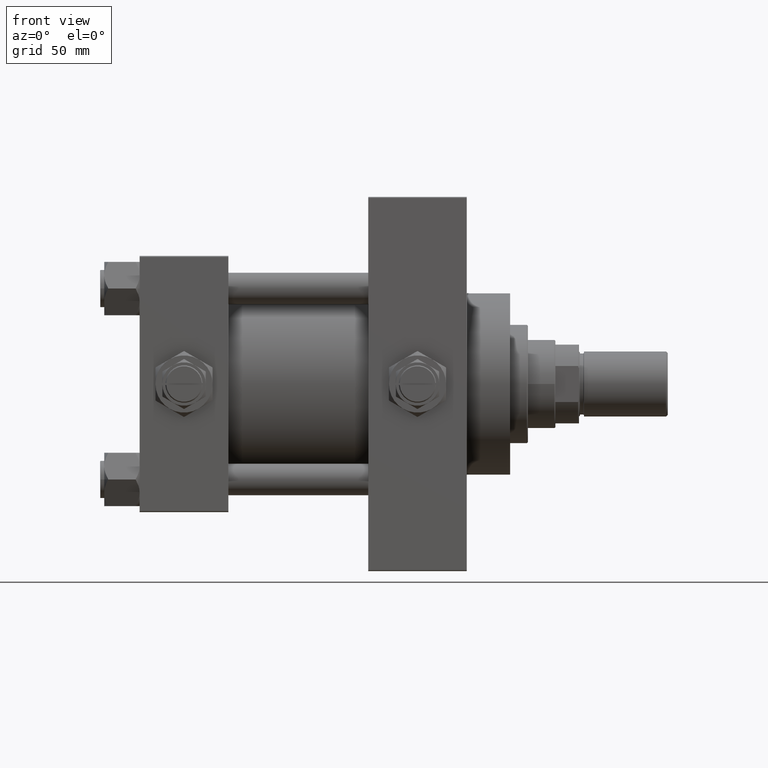
[diagram: clean part render]
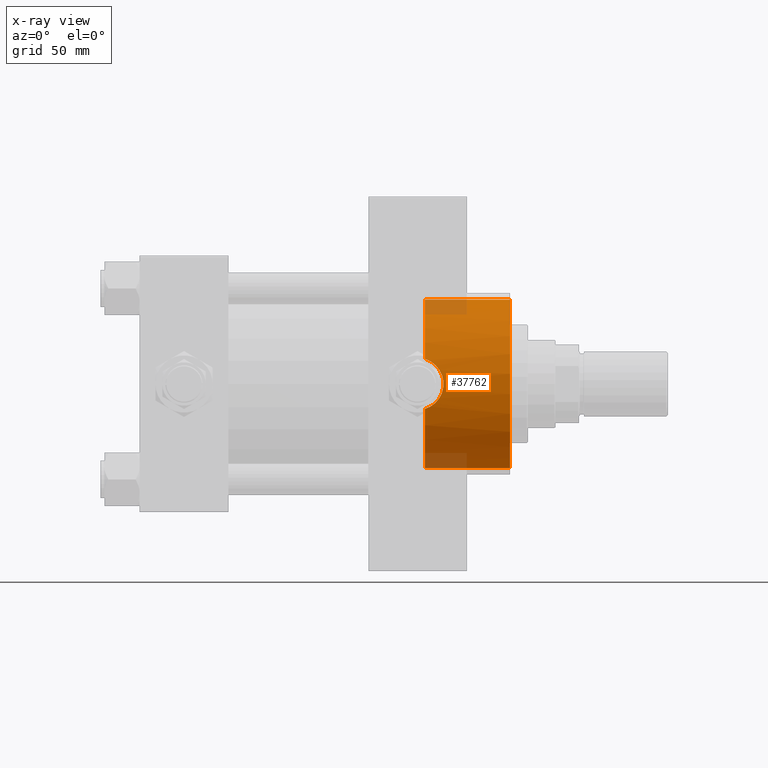
[diagram: x-ray — body ghosted, one internal face saturated and labeled with its STEP entity id]
A machine part, front view, then the same camera in x-ray: the body is ghosted and one INTERNAL B-rep face — a face not visible from any outside direction — is saturated and labeled: STEP entity #37762.
In plain terms, the highlighted cylindrical surface (partial cylindrical patch) has radius 42.75 mm, axis along (1, 0, 0).
Its self-contained STEP definition (entity closure, byte-faithful):
#130 = CARTESIAN_POINT ( 'NONE',  ( 187.9999999999999716, 5.235365066354935472E-15, 42.75000000000000000 ) ) ;
#1905 = CARTESIAN_POINT ( 'NONE',  ( 148.8355753955777629, -41.40179266465073482, -10.65353493722052391 ) ) ;
#2017 = AXIS2_PLACEMENT_3D ( 'NONE', #6197, #36952, #5680 ) ;
#2167 = CARTESIAN_POINT ( 'NONE',  ( 151.1624956355439053, -41.90350341365520137, 8.484592245230075491 ) ) ;
#2418 = CARTESIAN_POINT ( 'NONE',  ( 153.7463103793545258, -42.60581913250618413, -3.525264913244961829 ) ) ;
#2917 = CARTESIAN_POINT ( 'NONE',  ( 153.0363689430458010, -42.39775029133584638, 5.512880659442459752 ) ) ;
#5680 = DIRECTION ( 'NONE',  ( 0.000000000000000000, 0.000000000000000000, -1.000000000000000000 ) ) ;
#5876 = EDGE_CURVE ( 'NONE', #19662, #43928, #41578, .T. ) ;
#6197 = CARTESIAN_POINT ( 'NONE',  ( 144.7399999999999807, 0.000000000000000000, 0.000000000000000000 ) ) ;
#6482 = VERTEX_POINT ( 'NONE', #25154 ) ;
#7236 = CARTESIAN_POINT ( 'NONE',  ( 149.1389740240205128, -41.45739201802923191, 10.44126992344761362 ) ) ;
#7532 = CARTESIAN_POINT ( 'NONE',  ( 144.7399999999999807, -40.82623788692756506, -12.67993690836039988 ) ) ;
#7730 = CARTESIAN_POINT ( 'NONE',  ( 145.4270130609600642, -40.88917361113285409, 12.47729955562274995 ) ) ;
#8305 = EDGE_CURVE ( 'NONE', #41683, #26819, #16604, .T. ) ;
#9150 = EDGE_CURVE ( 'NONE', #26819, #6482, #45961, .T. ) ;
#9281 = DIRECTION ( 'NONE',  ( 0.000000000000000000, 0.000000000000000000, -1.000000000000000000 ) ) ;
#9522 = CARTESIAN_POINT ( 'NONE',  ( 152.3632172565832832, -42.21236386932923779, -6.765392829973841948 ) ) ;
#9779 = CARTESIAN_POINT ( 'NONE',  ( 152.5392672892635346, -42.26019519886384757, -6.460440162556747801 ) ) ;
#10288 = CARTESIAN_POINT ( 'NONE',  ( 153.9180342834379758, -42.65750819507706382, -2.832015403792548458 ) ) ;
#11057 = AXIS2_PLACEMENT_3D ( 'NONE', #31212, #15212, #11151 ) ;
#11151 = DIRECTION ( 'NONE',  ( 0.000000000000000000, 0.000000000000000000, -1.000000000000000000 ) ) ;
#11407 = EDGE_CURVE ( 'NONE', #32097, #6482, #21163, .T. ) ;
#11784 = CARTESIAN_POINT ( 'NONE',  ( 146.0894838391766086, -40.96701803660458552, 12.22163151364322786 ) ) ;
#12480 = AXIS2_PLACEMENT_3D ( 'NONE', #40045, #36227, #9281 ) ;
#12802 = CIRCLE ( 'NONE', #24988, 42.75000000000000000 ) ;
#13328 = CARTESIAN_POINT ( 'NONE',  ( 151.9856094472935979, -42.11228528523244563, -7.362719038215900902 ) ) ;
#13587 = CARTESIAN_POINT ( 'NONE',  ( 154.1610424353113729, -42.73166586794579302, -1.434504108584242932 ) ) ;
#15212 = DIRECTION ( 'NONE',  ( 1.000000000000000000, 0.000000000000000000, 0.000000000000000000 ) ) ;
#15335 = CARTESIAN_POINT ( 'NONE',  ( 144.7399999999999807, 5.235365066354935472E-15, 42.75000000000000000 ) ) ;
#16601 = CIRCLE ( 'NONE', #2017, 42.75000000000000000 ) ;
#16604 = LINE ( 'NONE', #29325, #45088 ) ;
#17351 = DIRECTION ( 'NONE',  ( 1.000000000000000000, -0.000000000000000000, -0.000000000000000000 ) ) ;
#17394 = CARTESIAN_POINT ( 'NONE',  ( 149.9249778787971650, -41.62197581820226588, -9.758883457264644790 ) ) ;
#17652 = CARTESIAN_POINT ( 'NONE',  ( 150.6899591689121394, -41.79050880085012665, 9.020331125314262621 ) ) ;
#17900 = CARTESIAN_POINT ( 'NONE',  ( 150.6811910902559077, -41.78848794132222366, -9.029589412144906291 ) ) ;
#18660 = CARTESIAN_POINT ( 'NONE',  ( 147.9852428248123601, -41.24640677797844290, 11.24586139236918214 ) ) ;
#18797 = EDGE_LOOP ( 'NONE', ( #37327, #35126, #20318, #27163, #31237, #22829 ) ) ;
#19292 = CARTESIAN_POINT ( 'NONE',  ( 144.7399999999999807, 0.000000000000000000, -42.75000000000000000 ) ) ;
#19662 = VERTEX_POINT ( 'NONE', #7532 ) ;
#20318 = ORIENTED_EDGE ( 'NONE', *, *, #9150, .T. ) ;
#20927 = DIRECTION ( 'NONE',  ( 1.000000000000000000, -0.000000000000000000, -0.000000000000000000 ) ) ;
#21163 = LINE ( 'NONE', #48102, #37100 ) ;
#21461 = CARTESIAN_POINT ( 'NONE',  ( 153.0298137930814732, -42.39589313351282129, -5.526869527314861585 ) ) ;
#21716 = CARTESIAN_POINT ( 'NONE',  ( 149.6630199548697249, -41.56646507779676369, -9.992219170631100766 ) ) ;
#21964 = CARTESIAN_POINT ( 'NONE',  ( 145.4270925851359095, -40.88918089616408480, -12.47727609963712858 ) ) ;
#22215 = CARTESIAN_POINT ( 'NONE',  ( 151.1459938556710938, -41.89947882874084684, -8.504551669291311455 ) ) ;
#22829 = ORIENTED_EDGE ( 'NONE', *, *, #5876, .T. ) ;
#23953 = CARTESIAN_POINT ( 'NONE',  ( 144.7399999999999807, -40.82623788692755795, 12.67993690836040521 ) ) ;
#24526 = CYLINDRICAL_SURFACE ( 'NONE', #12480, 42.75000000000000000 ) ;
#24988 = AXIS2_PLACEMENT_3D ( 'NONE', #42509, #38445, #42266 ) ;
#25015 = CARTESIAN_POINT ( 'NONE',  ( 153.7664851930732084, -42.61139927358282620, 3.505481660100332242 ) ) ;
#25154 = CARTESIAN_POINT ( 'NONE',  ( 187.9999999999999716, 0.000000000000000000, -42.75000000000000000 ) ) ;
#25270 = CARTESIAN_POINT ( 'NONE',  ( 154.2064277639875627, -42.74579618513911328, 0.6981213961015130254 ) ) ;
#25781 = CARTESIAN_POINT ( 'NONE',  ( 154.1061453106131012, -42.71489450414986067, 1.767314014186006421 ) ) ;
#26029 = CARTESIAN_POINT ( 'NONE',  ( 149.1188874313220651, -41.45647642344565753, -10.43915827880387326 ) ) ;
#26819 = VERTEX_POINT ( 'NONE', #130 ) ;
#27163 = ORIENTED_EDGE ( 'NONE', *, *, #11407, .F. ) ;
#28839 = CARTESIAN_POINT ( 'NONE',  ( 154.2204402740231899, -42.75013615013602220, 0.3392730657541593864 ) ) ;
#29325 = CARTESIAN_POINT ( 'NONE',  ( 144.7399999999999807, 5.235365066354935472E-15, 42.75000000000000000 ) ) ;
#29597 = CARTESIAN_POINT ( 'NONE',  ( 152.3813469663714670, -42.21646729893778627, 6.762467872710391958 ) ) ;
#31108 = CARTESIAN_POINT ( 'NONE',  ( 144.7399999999999807, -40.82623788692755795, 12.67993690836040521 ) ) ;
#31212 = CARTESIAN_POINT ( 'NONE',  ( 187.9999999999999716, 0.000000000000000000, 0.000000000000000000 ) ) ;
#31237 = ORIENTED_EDGE ( 'NONE', *, *, #39434, .F. ) ;
#32097 = VERTEX_POINT ( 'NONE', #19292 ) ;
#32915 = CARTESIAN_POINT ( 'NONE',  ( 151.7830761643834308, -42.05979779156207599, -7.656286047219433399 ) ) ;
#33174 = CARTESIAN_POINT ( 'NONE',  ( 149.6796625534670682, -41.56787051534882949, 9.996256312412176825 ) ) ;
#33420 = CARTESIAN_POINT ( 'NONE',  ( 147.3542414019935052, -41.14336595071721092, -11.61405540322419405 ) ) ;
#33924 = CARTESIAN_POINT ( 'NONE',  ( 147.3674952756207688, -41.14533651760912392, 11.60715841709176033 ) ) ;
#35126 = ORIENTED_EDGE ( 'NONE', *, *, #8305, .T. ) ;
#36227 = DIRECTION ( 'NONE',  ( 1.000000000000000000, -0.000000000000000000, -0.000000000000000000 ) ) ;
#36721 = CARTESIAN_POINT ( 'NONE',  ( 147.9623401956243640, -41.24246182355483370, -11.26040908465783552 ) ) ;
#36952 = DIRECTION ( 'NONE',  ( 1.000000000000000000, 0.000000000000000000, 0.000000000000000000 ) ) ;
#36978 = CARTESIAN_POINT ( 'NONE',  ( 153.9355267676178016, -42.66274983104982255, 2.818638351193893055 ) ) ;
#37100 = VECTOR ( 'NONE', #17351, 1000.000000000000000 ) ;
#37237 = CARTESIAN_POINT ( 'NONE',  ( 153.3069645189583525, -42.47597988253321688, -4.879662359427102913 ) ) ;
#37327 = ORIENTED_EDGE ( 'NONE', *, *, #46450, .F. ) ;
#37480 = CARTESIAN_POINT ( 'NONE',  ( 152.0065971449161850, -42.11617814458287512, 7.356591765198860600 ) ) ;
#37735 = CARTESIAN_POINT ( 'NONE',  ( 154.2190876467556677, -42.74971786429958343, -0.7287734874664777429 ) ) ;
#37762 = ADVANCED_FACE ( 'NONE', ( #44881 ), #24526, .F. ) ;
#38445 = DIRECTION ( 'NONE',  ( 1.000000000000000000, 0.000000000000000000, 0.000000000000000000 ) ) ;
#39434 = EDGE_CURVE ( 'NONE', #19662, #32097, #16601, .T. ) ;
#40045 = CARTESIAN_POINT ( 'NONE',  ( 144.7399999999999807, 0.000000000000000000, 0.000000000000000000 ) ) ;
#40791 = CARTESIAN_POINT ( 'NONE',  ( 154.1491276445503900, -42.72812791392467346, 1.413347075717686252 ) ) ;
#41578 = B_SPLINE_CURVE_WITH_KNOTS ( 'NONE', 3,
 ( #44617, #21964, #45112, #33420, #36721, #1905, #26029, #21716, #17394, #17900, #22215, #32915, #13328, #9522, #9779, #21461, #37237, #48402, #2418, #10288, #48906, #13587, #37735, #28839, #25270, #40791, #25781, #36978, #25015, #44363, #2917, #29597, #37480, #2167, #17652, #33174, #7236, #18660, #33924, #11784, #7730, #31108 ),
 .UNSPECIFIED., .F., .F.,
 ( 4, 2, 2, 2, 2, 2, 2, 2, 2, 2, 2, 2, 2, 2, 2, 2, 2, 2, 2, 2, 4 ),
 ( 0.000000000000000000, 0.002125631886811253993, 0.004251263773622507985, 0.005314079717028102022, 0.006376895660433695191, 0.008502527547244880662, 0.009565343490650501587, 0.01062815943405612251, 0.01275379132086732273, 0.01381660726427291243, 0.01487942320767850039, 0.01700505509448966418, 0.01806787103789524868, 0.01913068698130082623, 0.02125631886811198135, 0.02338195075492312952, 0.02550758264173428116, 0.02763321452854543628, 0.02975884641535658792, 0.03188447830216774304, 0.03401011018897889121 ),
 .UNSPECIFIED. ) ;
#41683 = VERTEX_POINT ( 'NONE', #15335 ) ;
#42266 = DIRECTION ( 'NONE',  ( 0.000000000000000000, 0.000000000000000000, -1.000000000000000000 ) ) ;
#42509 = CARTESIAN_POINT ( 'NONE',  ( 144.7399999999999807, 0.000000000000000000, 0.000000000000000000 ) ) ;
#43928 = VERTEX_POINT ( 'NONE', #23953 ) ;
#44363 = CARTESIAN_POINT ( 'NONE',  ( 153.3180906512883155, -42.47921328321765344, 4.851410986599765884 ) ) ;
#44617 = CARTESIAN_POINT ( 'NONE',  ( 144.7399999999999807, -40.82623788692756506, -12.67993690836039988 ) ) ;
#44881 = FACE_OUTER_BOUND ( 'NONE', #18797, .T. ) ;
#45088 = VECTOR ( 'NONE', #20927, 1000.000000000000000 ) ;
#45112 = CARTESIAN_POINT ( 'NONE',  ( 146.0866117877859551, -40.96674013684113902, -12.22248122208934618 ) ) ;
#45961 = CIRCLE ( 'NONE', #11057, 42.75000000000000000 ) ;
#46450 = EDGE_CURVE ( 'NONE', #41683, #43928, #12802, .T. ) ;
#48102 = CARTESIAN_POINT ( 'NONE',  ( 144.7399999999999807, 0.000000000000000000, -42.75000000000000000 ) ) ;
#48402 = CARTESIAN_POINT ( 'NONE',  ( 153.6458388575748870, -42.57581106965982798, -3.870036135680953393 ) ) ;
#48906 = CARTESIAN_POINT ( 'NONE',  ( 153.9894081557862933, -42.67922043224351825, -2.483804695984515920 ) ) ;